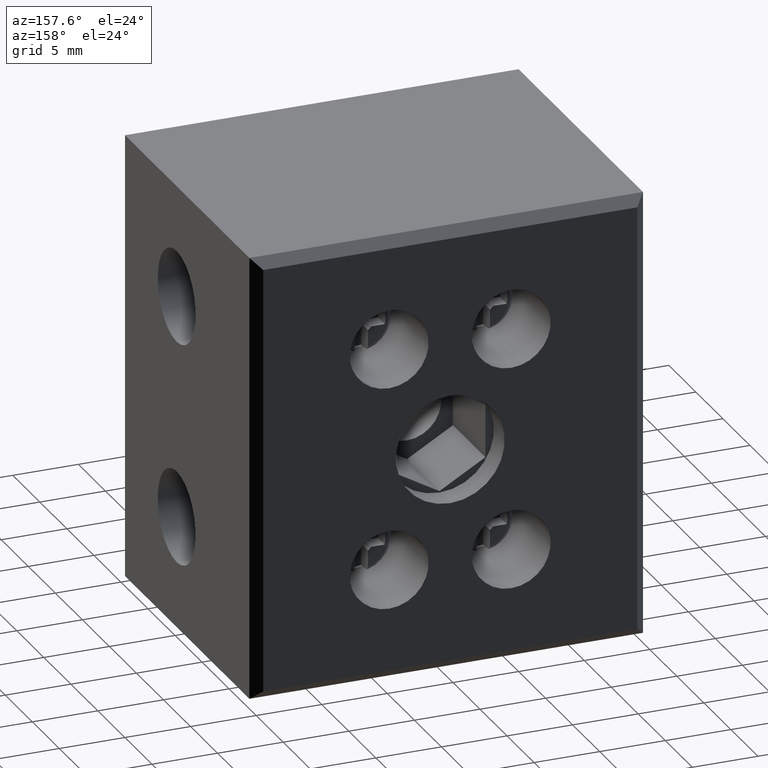
[diagram: clean part render]
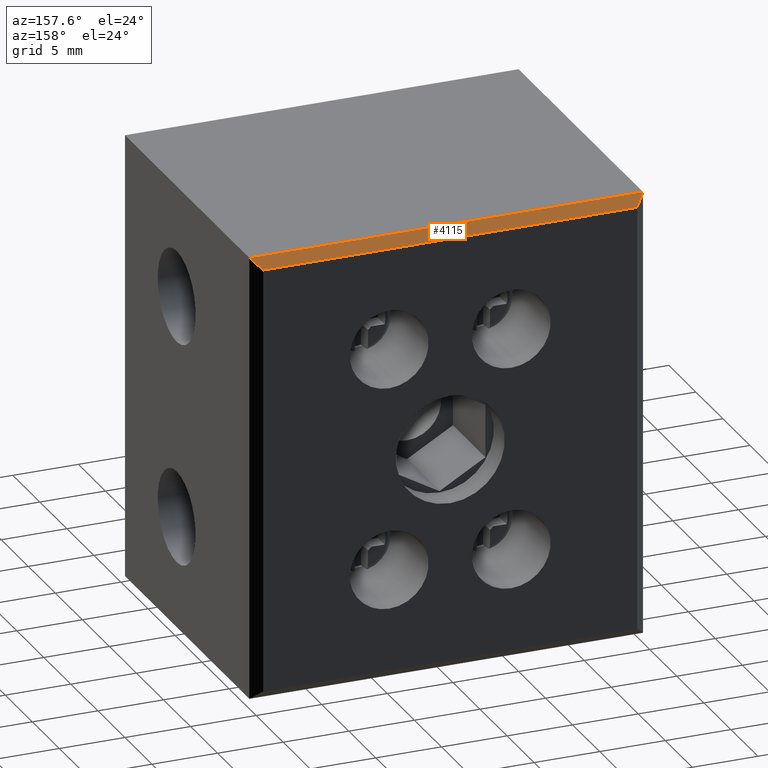
[diagram: same view with one face highlighted and labeled with its STEP entity id]
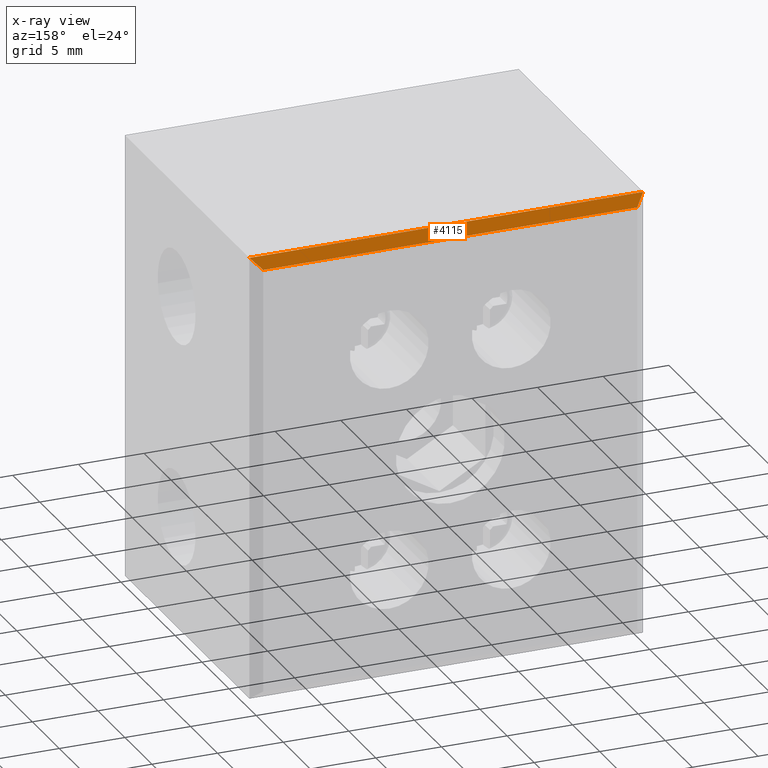
[diagram: x-ray of the same camera — body ghosted, the highlighted face saturated]
A machine part, auxiliary view. The second image highlights one B-rep face of the part: STEP entity #4115.
The next image is the same camera in x-ray: the body ghosted, the highlighted face saturated — about 0% of this face is hidden behind the body in this view.
In plain terms, the highlighted planar face has unit normal (0, -0.7071, -0.7071).
Its self-contained STEP definition (entity closure, byte-faithful):
#37 = CARTESIAN_POINT ( 'NONE',  ( 0.7499999999999937800, 24.50000000000000000, -0.7499999999999937800 ) ) ;
#58 = CARTESIAN_POINT ( 'NONE',  ( 30.00000000000000000, 23.75000000000000000, -4.566354618647933100E-015 ) ) ;
#61 = CARTESIAN_POINT ( 'NONE',  ( 29.25000000000000400, 24.50000000000000000, -0.7499999999999935600 ) ) ;
#77 = CARTESIAN_POINT ( 'NONE',  ( 6.217221832846545800E-016, 23.75000000000000000, -6.098637220230952600E-016 ) ) ;
#407 = DIRECTION ( 'NONE',  ( 0.0000000000000000000, -0.7071067811865442400, -0.7071067811865509000 ) ) ;
#410 = FACE_OUTER_BOUND ( 'NONE', #3967, .T. ) ;
#433 = CARTESIAN_POINT ( 'NONE',  ( 0.0000000000000000000, 24.50000000000000000, -0.7499999999999937800 ) ) ;
#436 = PLANE ( 'NONE',  #7936 ) ;
#438 = DIRECTION ( 'NONE',  ( 0.0000000000000000000, 0.7071067811865507900, -0.7071067811865441300 ) ) ;
#1328 = VERTEX_POINT ( 'NONE', #61 ) ;
#1332 = VERTEX_POINT ( 'NONE', #37 ) ;
#1336 = VERTEX_POINT ( 'NONE', #58 ) ;
#1411 = VERTEX_POINT ( 'NONE', #77 ) ;
#1878 = ORIENTED_EDGE ( 'NONE', *, *, #5039, .F. ) ;
#1914 = ORIENTED_EDGE ( 'NONE', *, *, #5113, .F. ) ;
#1919 = ORIENTED_EDGE ( 'NONE', *, *, #5072, .T. ) ;
#1931 = ORIENTED_EDGE ( 'NONE', *, *, #5007, .F. ) ;
#3967 = EDGE_LOOP ( 'NONE', ( #1914, #1931, #1878, #1919 ) ) ;
#4115 = ADVANCED_FACE ( 'NONE', ( #410 ), #436, .F. ) ;
#5007 = EDGE_CURVE ( 'NONE', #1332, #1328, #6096, .T. ) ;
#5039 = EDGE_CURVE ( 'NONE', #1411, #1332, #6426, .T. ) ;
#5072 = EDGE_CURVE ( 'NONE', #1411, #1336, #6501, .T. ) ;
#5113 = EDGE_CURVE ( 'NONE', #1328, #1336, #6636, .T. ) ;
#6096 = LINE ( 'NONE', #6146, #8990 ) ;
#6146 = CARTESIAN_POINT ( 'NONE',  ( 0.0000000000000000000, 24.50000000000000000, -0.7499999999999936700 ) ) ;
#6150 = DIRECTION ( 'NONE',  ( 1.000000000000000000, 0.0000000000000000000, 0.0000000000000000000 ) ) ;
#6412 = DIRECTION ( 'NONE',  ( 0.5773502691896239500, 0.5773502691896293900, -0.5773502691896239500 ) ) ;
#6426 = LINE ( 'NONE', #6431, #9072 ) ;
#6431 = CARTESIAN_POINT ( 'NONE',  ( -1.355252715606880500E-017, 23.75000000000000000, 0.0000000000000000000 ) ) ;
#6501 = LINE ( 'NONE', #6513, #9128 ) ;
#6513 = CARTESIAN_POINT ( 'NONE',  ( 0.0000000000000000000, 23.75000000000000000, 0.0000000000000000000 ) ) ;
#6525 = DIRECTION ( 'NONE',  ( 1.000000000000000000, -0.0000000000000000000, 0.0000000000000000000 ) ) ;
#6615 = CARTESIAN_POINT ( 'NONE',  ( 29.25000000000000400, 24.50000000000000000, -0.7499999999999942300 ) ) ;
#6636 = LINE ( 'NONE', #6615, #9177 ) ;
#6641 = DIRECTION ( 'NONE',  ( 0.5773502691896255100, -0.5773502691896282800, 0.5773502691896236200 ) ) ;
#7936 = AXIS2_PLACEMENT_3D ( 'NONE', #433, #407, #438 ) ;
#8990 = VECTOR ( 'NONE', #6150, 1000.000000000000000 ) ;
#9072 = VECTOR ( 'NONE', #6412, 1000.000000000000100 ) ;
#9128 = VECTOR ( 'NONE', #6525, 1000.000000000000000 ) ;
#9177 = VECTOR ( 'NONE', #6641, 1000.000000000000100 ) ;